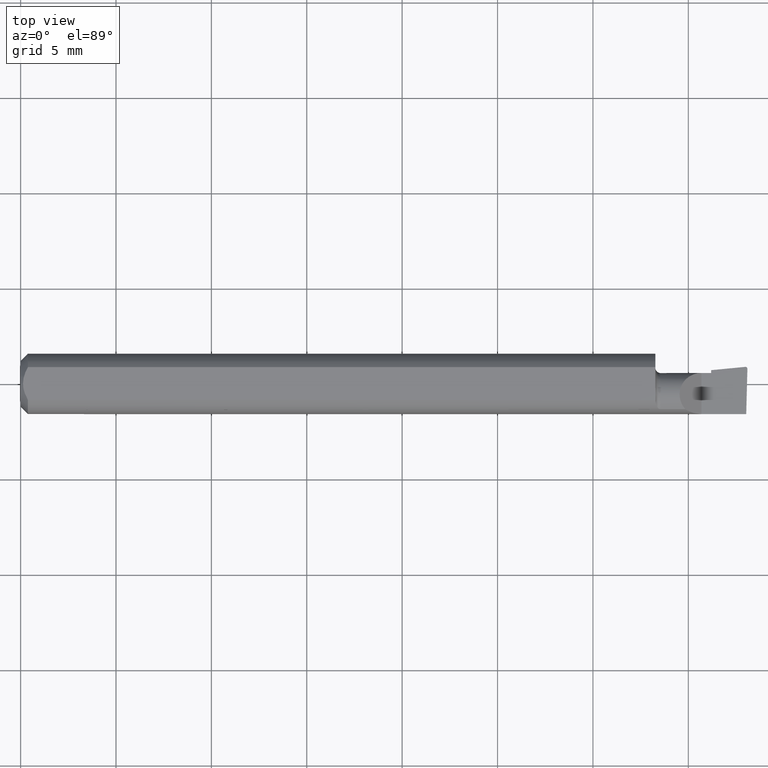
[diagram: clean part render]
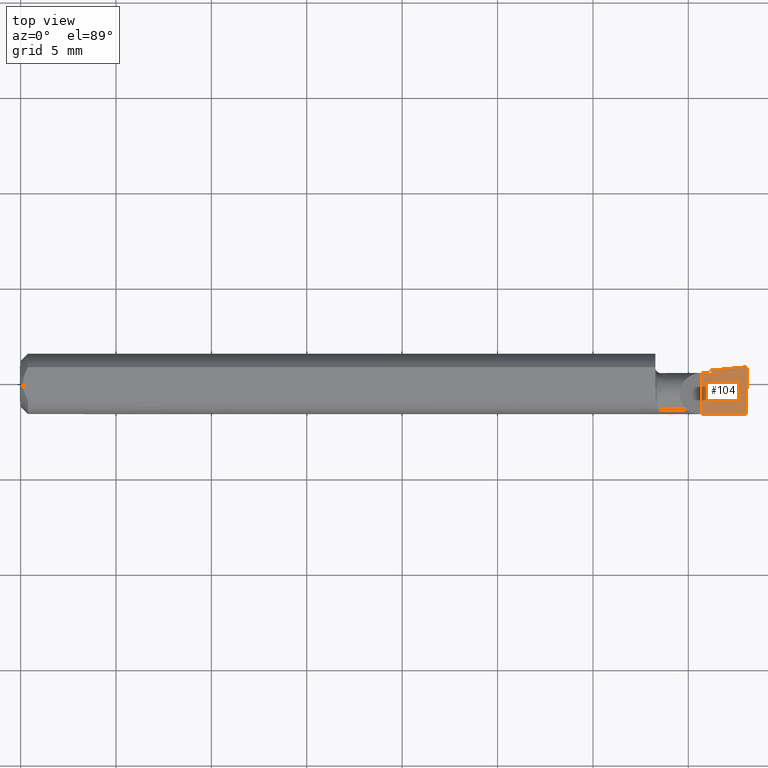
[diagram: same view with one face highlighted and labeled with its STEP entity id]
A machine part, top view. The second image highlights one B-rep face of the part: STEP entity #104.
In plain terms, the highlighted planar face has unit normal (-0, 0, -1).
Its self-contained STEP definition (entity closure, byte-faithful):
#15 = ORIENTED_EDGE ( 'NONE', *, *, #494, .F. ) ;
#28 = ORIENTED_EDGE ( 'NONE', *, *, #515, .F. ) ;
#50 = VERTEX_POINT ( 'NONE', #226 ) ;
#64 = VERTEX_POINT ( 'NONE', #69 ) ;
#67 = VECTOR ( 'NONE', #135, 39.37007874015748143 ) ;
#69 = CARTESIAN_POINT ( 'NONE',  ( 1.405000000000000249, -0.06235000000000005121, 1.163414459189985436E-17 ) ) ;
#103 = CARTESIAN_POINT ( 'NONE',  ( 1.499880855614015740, 0.03110005946548960454, 2.797005382439670689E-20 ) ) ;
#104 = ADVANCED_FACE ( 'NONE', ( #463 ), #572, .F. ) ;
#127 = DIRECTION ( 'NONE',  ( -1.000000000000000000, -0.0000000000000000000, -0.0000000000000000000 ) ) ;
#128 = VECTOR ( 'NONE', #127, 39.37007874015748143 ) ;
#135 = DIRECTION ( 'NONE',  ( -5.691349986800549142E-18, 1.000000000000000000, 6.969893544162626646E-34 ) ) ;
#143 = CARTESIAN_POINT ( 'NONE',  ( 1.405000000000000249, -0.2500000000000000555, 1.163414459189985436E-17 ) ) ;
#153 = EDGE_CURVE ( 'NONE', #322, #64, #523, .T. ) ;
#162 = CARTESIAN_POINT ( 'NONE',  ( 0.8971276994979846542, -0.02239999999999999977, 7.383056331043946157E-17 ) ) ;
#163 = DIRECTION ( 'NONE',  ( -1.224646799147353947E-16, 0.0000000000000000000, -1.000000000000000000 ) ) ;
#166 =( BOUNDED_CURVE ( )  B_SPLINE_CURVE ( 3, ( #530, #650, #544, #301 ),
 .UNSPECIFIED., .F., .T. ) 
 B_SPLINE_CURVE_WITH_KNOTS ( ( 4, 4 ),
 ( 1.953092279228398453, 3.511516179717621977 ),
 .UNSPECIFIED. ) 
 CURVE ( )  GEOMETRIC_REPRESENTATION_ITEM ( )  RATIONAL_B_SPLINE_CURVE ( ( 1.000000000000000000, 0.8076450242550491376, 0.8076450242550491376, 1.000000000000000000 ) ) 
 REPRESENTATION_ITEM ( '' )  );
#167 = ORIENTED_EDGE ( 'NONE', *, *, #348, .F. ) ;
#170 = VECTOR ( 'NONE', #503, 39.37007874015748143 ) ;
#173 = EDGE_CURVE ( 'NONE', #322, #395, #660, .T. ) ;
#180 = CARTESIAN_POINT ( 'NONE',  ( 1.405000000000000249, 0.02264999999999996183, 1.163414459189985436E-17 ) ) ;
#190 = CARTESIAN_POINT ( 'NONE',  ( 1.425000000000000266, -0.2500000000000000555, 9.184850993605139501E-18 ) ) ;
#191 = LINE ( 'NONE', #162, #319 ) ;
#194 = CARTESIAN_POINT ( 'NONE',  ( 1.425000000000000266, 0.02264999999999999653, 1.836970198721030674E-16 ) ) ;
#203 = LINE ( 'NONE', #190, #67 ) ;
#207 = ORIENTED_EDGE ( 'NONE', *, *, #210, .T. ) ;
#208 = CARTESIAN_POINT ( 'NONE',  ( -2.563953169053421735E-19, 0.02264999999999997918, 1.836970198721030427E-16 ) ) ;
#210 = EDGE_CURVE ( 'NONE', #50, #467, #287, .T. ) ;
#226 = CARTESIAN_POINT ( 'NONE',  ( 1.496007920276498648, 0.03524764111161338143, -8.537024980200822558E-18 ) ) ;
#229 = VERTEX_POINT ( 'NONE', #180 ) ;
#239 = CARTESIAN_POINT ( 'NONE',  ( 1.492525117049605665, -0.2498042633013223268, 9.154091479201578610E-19 ) ) ;
#243 = EDGE_CURVE ( 'NONE', #395, #50, #166, .T. ) ;
#259 = VECTOR ( 'NONE', #293, 39.37007874015748854 ) ;
#286 = CARTESIAN_POINT ( 'NONE',  ( 1.495634880358085672, 0.03522968678441162210, 5.345729797365519968E-19 ) ) ;
#287 =( BOUNDED_CURVE ( )  B_SPLINE_CURVE ( 3, ( #436, #486, #532, #286 ),
 .UNSPECIFIED., .F., .F. ) 
 B_SPLINE_CURVE_WITH_KNOTS ( ( 4, 4 ),
 ( 3.511516179717621977, 3.604018710826138339 ),
 .UNSPECIFIED. ) 
 CURVE ( )  GEOMETRIC_REPRESENTATION_ITEM ( )  RATIONAL_B_SPLINE_CURVE ( ( 1.000000000000000000, 0.9992870672494020834, 0.9992870672494020834, 1.000000000000000000 ) ) 
 REPRESENTATION_ITEM ( '' )  );
#293 = DIRECTION ( 'NONE',  ( 0.02617694830784729476, 0.9996573249755579260, -3.158139334220717592E-18 ) ) ;
#301 = CARTESIAN_POINT ( 'NONE',  ( 1.496007920276498648, 0.03524764111161338143, -8.537024980200822558E-18 ) ) ;
#319 = VECTOR ( 'NONE', #325, 39.37007874015748143 ) ;
#322 = VERTEX_POINT ( 'NONE', #419 ) ;
#325 = DIRECTION ( 'NONE',  ( 0.9953961983671787417, 0.09584575252022463354, -1.219008768213809849E-16 ) ) ;
#341 = ORIENTED_EDGE ( 'NONE', *, *, #173, .T. ) ;
#343 = CARTESIAN_POINT ( 'NONE',  ( 2.249639673992788601E-32, -0.06234999999999999570, 1.836970198721030427E-16 ) ) ;
#348 = EDGE_CURVE ( 'NONE', #578, #467, #191, .T. ) ;
#388 = ORIENTED_EDGE ( 'NONE', *, *, #153, .F. ) ;
#395 = VERTEX_POINT ( 'NONE', #103 ) ;
#406 = DIRECTION ( 'NONE',  ( 1.000000000000000000, 5.691349986800549142E-18, 0.0000000000000000000 ) ) ;
#412 = EDGE_LOOP ( 'NONE', ( #341, #588, #207, #167, #15, #462, #28, #388 ) ) ;
#415 = EDGE_CURVE ( 'NONE', #229, #607, #490, .T. ) ;
#419 = CARTESIAN_POINT ( 'NONE',  ( 1.497433779686218935, -0.06235000000000005121, 3.231995301756492833E-19 ) ) ;
#436 = CARTESIAN_POINT ( 'NONE',  ( 1.496007920276498648, 0.03524764111161338143, -8.537024980200822558E-18 ) ) ;
#462 = ORIENTED_EDGE ( 'NONE', *, *, #415, .F. ) ;
#463 = FACE_OUTER_BOUND ( 'NONE', #412, .T. ) ;
#467 = VERTEX_POINT ( 'NONE', #601 ) ;
#471 = DIRECTION ( 'NONE',  ( -1.000000000000000000, 0.0000000000000000000, 1.224646799147353947E-16 ) ) ;
#486 = CARTESIAN_POINT ( 'NONE',  ( 1.495883579913029671, 0.03524764111161338836, -8.541373163872207410E-18 ) ) ;
#490 = LINE ( 'NONE', #208, #629 ) ;
#494 = EDGE_CURVE ( 'NONE', #607, #578, #203, .T. ) ;
#503 = DIRECTION ( 'NONE',  ( -0.0000000000000000000, 1.000000000000000000, -0.0000000000000000000 ) ) ;
#515 = EDGE_CURVE ( 'NONE', #64, #229, #615, .T. ) ;
#523 = LINE ( 'NONE', #343, #128 ) ;
#530 = CARTESIAN_POINT ( 'NONE',  ( 1.499880855614015740, 0.03110005946548960454, 2.797005382439670689E-20 ) ) ;
#532 = CARTESIAN_POINT ( 'NONE',  ( 1.495759144559519527, 0.03524165206609278927, -8.526134228134547821E-18 ) ) ;
#544 = CARTESIAN_POINT ( 'NONE',  ( 1.498346190944504608, 0.03524764111161336061, -8.842956035596335851E-18 ) ) ;
#572 = PLANE ( 'NONE',  #626 ) ;
#574 = CARTESIAN_POINT ( 'NONE',  ( 1.500000000000000222, -0.2500000000000000555, 0.0000000000000000000 ) ) ;
#578 = VERTEX_POINT ( 'NONE', #655 ) ;
#588 = ORIENTED_EDGE ( 'NONE', *, *, #243, .T. ) ;
#601 = CARTESIAN_POINT ( 'NONE',  ( 1.495634880358085672, 0.03522968678441162210, 5.345729797365519968E-19 ) ) ;
#607 = VERTEX_POINT ( 'NONE', #194 ) ;
#615 = LINE ( 'NONE', #143, #170 ) ;
#626 = AXIS2_PLACEMENT_3D ( 'NONE', #574, #163, #471 ) ;
#629 = VECTOR ( 'NONE', #406, 39.37007874015748143 ) ;
#650 = CARTESIAN_POINT ( 'NONE',  ( 1.499944638786153694, 0.03353584053852148861, -9.038709438884280461E-18 ) ) ;
#655 = CARTESIAN_POINT ( 'NONE',  ( 1.425000000000000266, 0.02842832138518564325, 1.856802933193678953E-16 ) ) ;
#660 = LINE ( 'NONE', #239, #259 ) ;